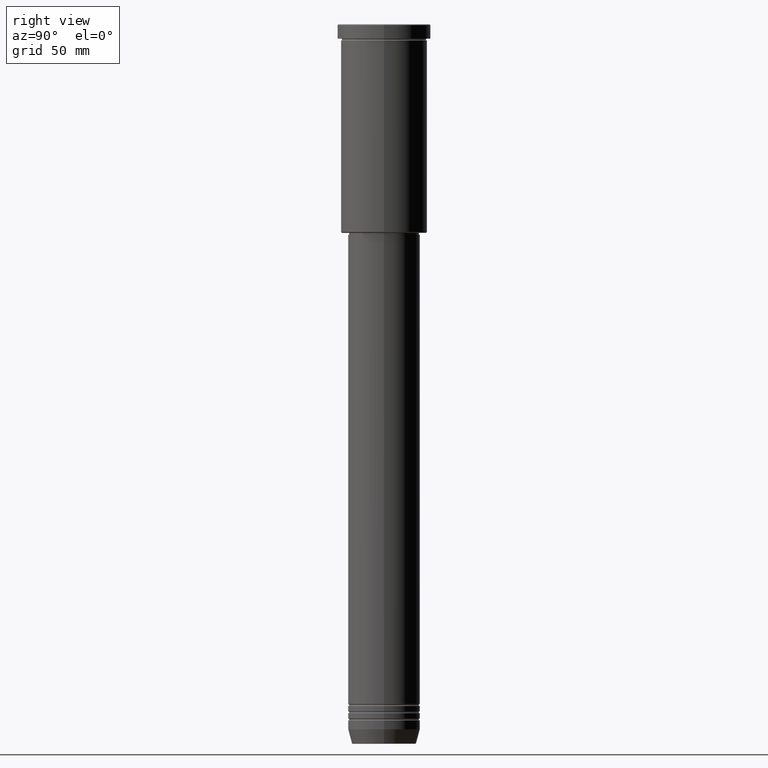
[diagram: clean part render]
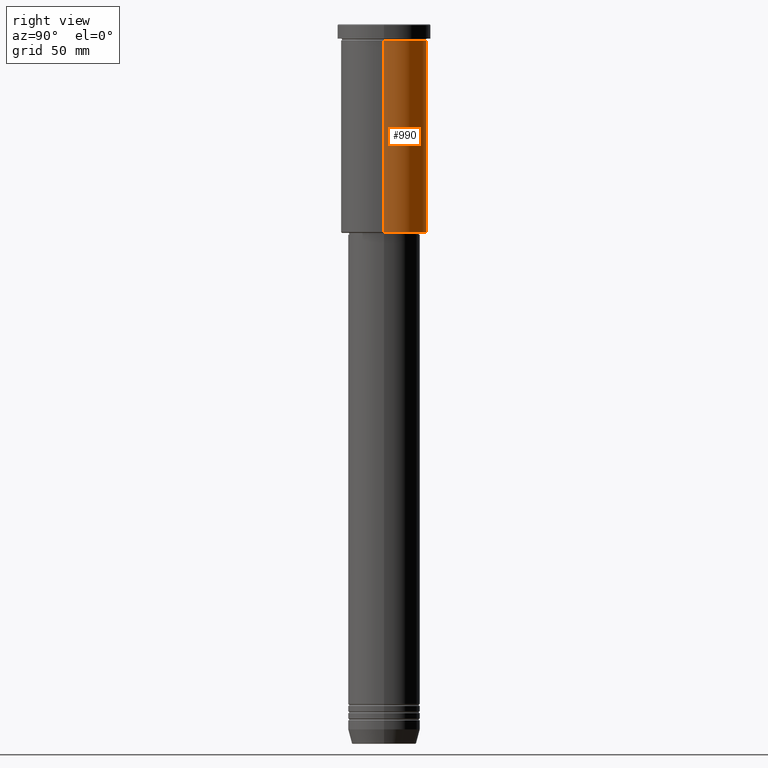
[diagram: same view with one face highlighted and labeled with its STEP entity id]
A machine part, right view. The second image highlights one B-rep face of the part: STEP entity #990.
In plain terms, the highlighted cylindrical surface (partial cylindrical patch) has radius 24 mm, axis along (-0, -0, 1).
Its self-contained STEP definition (entity closure, byte-faithful):
#18 = EDGE_CURVE ( 'NONE', #942, #684, #355, .T. ) ;
#39 = VECTOR ( 'NONE', #915, 1000.000000000000000 ) ;
#90 = CARTESIAN_POINT ( 'NONE',  ( 24.00000000000000000, 0.000000000000000000, 0.000000000000000000 ) ) ;
#98 = CYLINDRICAL_SURFACE ( 'NONE', #664, 24.00000000000000000 ) ;
#105 = DIRECTION ( 'NONE',  ( 1.000000000000000000, 0.000000000000000000, 0.000000000000000000 ) ) ;
#187 = CARTESIAN_POINT ( 'NONE',  ( 0.000000000000000000, 0.000000000000000000, -8.999999999999994671 ) ) ;
#204 = ORIENTED_EDGE ( 'NONE', *, *, #411, .F. ) ;
#263 = CARTESIAN_POINT ( 'NONE',  ( 0.000000000000000000, 0.000000000000000000, 0.000000000000000000 ) ) ;
#274 = LINE ( 'NONE', #90, #39 ) ;
#280 = DIRECTION ( 'NONE',  ( -0.000000000000000000, -0.000000000000000000, 1.000000000000000000 ) ) ;
#291 = AXIS2_PLACEMENT_3D ( 'NONE', #187, #383, #838 ) ;
#313 = CARTESIAN_POINT ( 'NONE',  ( -24.00000000000000000, 2.939152317953647894E-15, -115.4999999999999574 ) ) ;
#338 = ORIENTED_EDGE ( 'NONE', *, *, #440, .T. ) ;
#355 = CIRCLE ( 'NONE', #291, 24.00000000000000000 ) ;
#357 = CARTESIAN_POINT ( 'NONE',  ( 24.00000000000000000, 0.000000000000000000, -115.4999999999999574 ) ) ;
#363 = DIRECTION ( 'NONE',  ( -0.000000000000000000, -0.000000000000000000, 1.000000000000000000 ) ) ;
#383 = DIRECTION ( 'NONE',  ( -0.000000000000000000, -0.000000000000000000, 1.000000000000000000 ) ) ;
#411 = EDGE_CURVE ( 'NONE', #968, #942, #274, .T. ) ;
#429 = EDGE_LOOP ( 'NONE', ( #338, #571, #1122, #204 ) ) ;
#440 = EDGE_CURVE ( 'NONE', #968, #470, #943, .T. ) ;
#448 = CARTESIAN_POINT ( 'NONE',  ( 0.000000000000000000, 0.000000000000000000, -115.4999999999999574 ) ) ;
#458 = LINE ( 'NONE', #634, #1058 ) ;
#470 = VERTEX_POINT ( 'NONE', #313 ) ;
#541 = AXIS2_PLACEMENT_3D ( 'NONE', #448, #363, #638 ) ;
#571 = ORIENTED_EDGE ( 'NONE', *, *, #1148, .T. ) ;
#634 = CARTESIAN_POINT ( 'NONE',  ( -24.00000000000000000, 2.939152317953647894E-15, 0.000000000000000000 ) ) ;
#638 = DIRECTION ( 'NONE',  ( -1.000000000000000000, 0.000000000000000000, 0.000000000000000000 ) ) ;
#664 = AXIS2_PLACEMENT_3D ( 'NONE', #263, #280, #105 ) ;
#684 = VERTEX_POINT ( 'NONE', #1002 ) ;
#804 = CARTESIAN_POINT ( 'NONE',  ( 24.00000000000000000, 0.000000000000000000, -8.999999999999994671 ) ) ;
#825 = DIRECTION ( 'NONE',  ( -0.000000000000000000, -0.000000000000000000, 1.000000000000000000 ) ) ;
#838 = DIRECTION ( 'NONE',  ( 1.000000000000000000, 0.000000000000000000, 0.000000000000000000 ) ) ;
#915 = DIRECTION ( 'NONE',  ( -0.000000000000000000, -0.000000000000000000, 1.000000000000000000 ) ) ;
#942 = VERTEX_POINT ( 'NONE', #804 ) ;
#943 = CIRCLE ( 'NONE', #541, 24.00000000000000000 ) ;
#968 = VERTEX_POINT ( 'NONE', #357 ) ;
#990 = ADVANCED_FACE ( 'NONE', ( #1014 ), #98, .T. ) ;
#1002 = CARTESIAN_POINT ( 'NONE',  ( -24.00000000000000000, 2.939152317953647894E-15, -8.999999999999994671 ) ) ;
#1014 = FACE_OUTER_BOUND ( 'NONE', #429, .T. ) ;
#1058 = VECTOR ( 'NONE', #825, 1000.000000000000000 ) ;
#1122 = ORIENTED_EDGE ( 'NONE', *, *, #18, .F. ) ;
#1148 = EDGE_CURVE ( 'NONE', #470, #684, #458, .T. ) ;